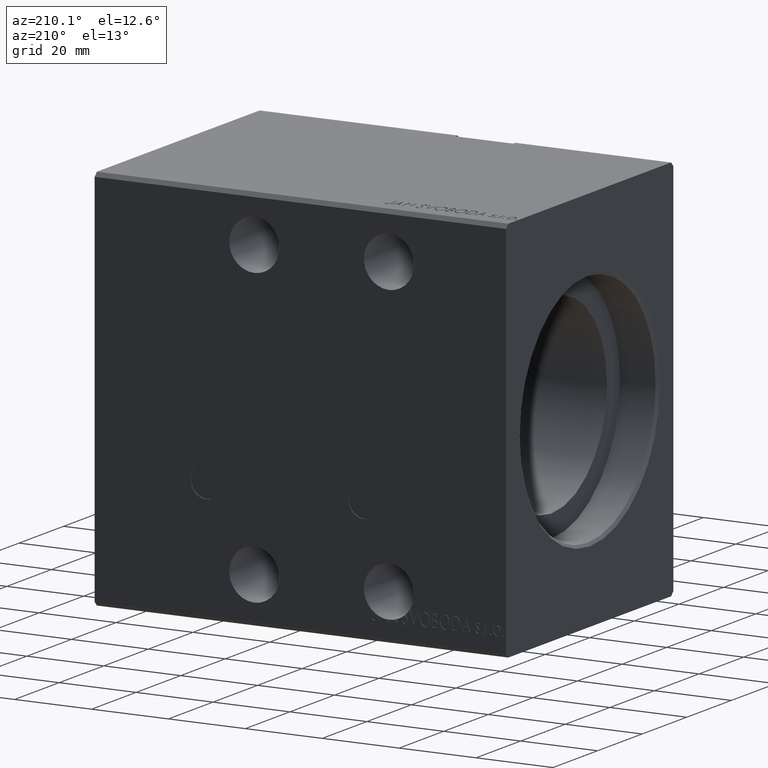
[diagram: clean part render]
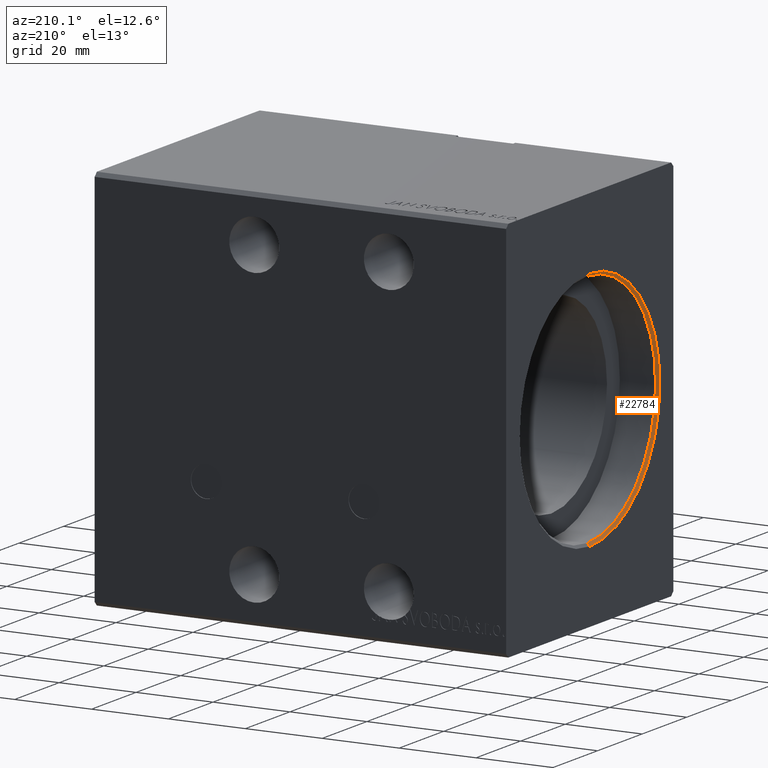
[diagram: same view with one face highlighted and labeled with its STEP entity id]
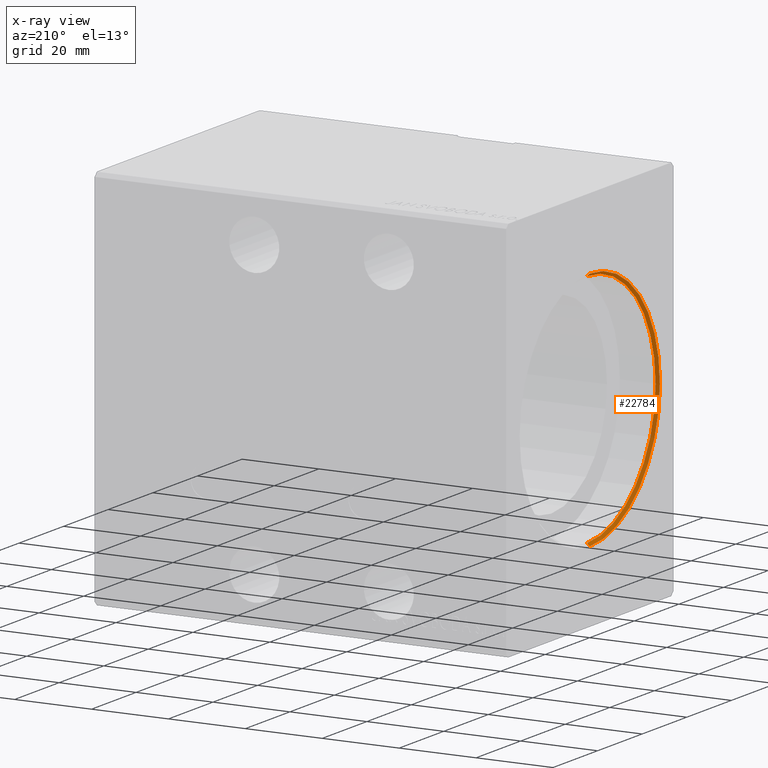
[diagram: x-ray of the same camera — body ghosted, the highlighted face saturated]
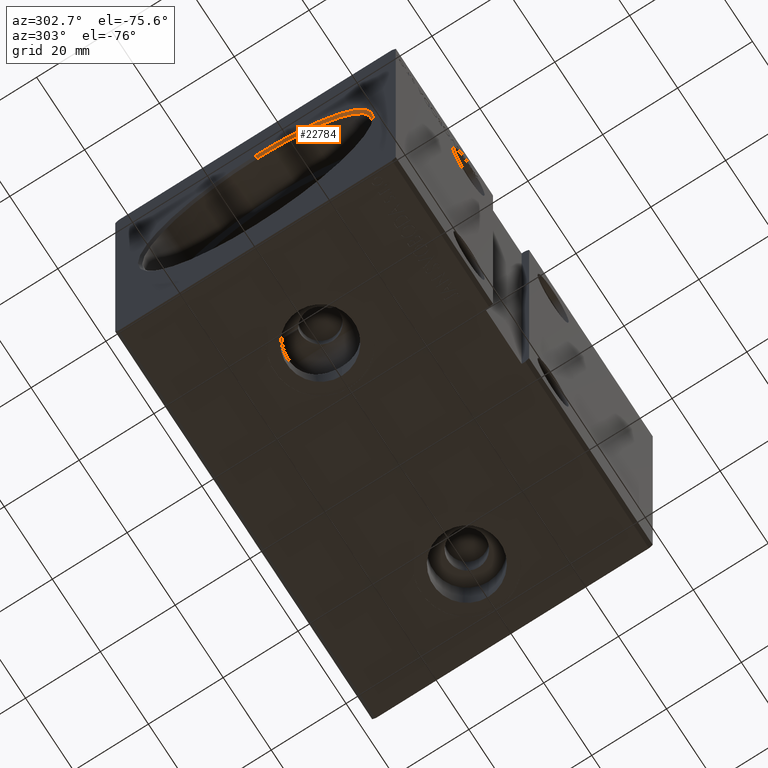
[diagram: same view with one face highlighted and labeled with its STEP entity id]
A machine part, auxiliary view. The second image highlights one B-rep face of the part: STEP entity #22784.
The next image is the same camera in x-ray: the body ghosted, the highlighted face saturated — about 0% of this face is hidden behind the body in this view.
A second angle (auxiliary view) of the same face is appended — the face is thin or edge-on in the first view.
In plain terms, the highlighted conical surface has half-angle 45 deg.
Its self-contained STEP definition (entity closure, byte-faithful):
#212 = CARTESIAN_POINT ( 'NONE',  ( 0.7000000000000234923, 3.765788907378110539E-15, -30.75000000000000355 ) ) ;
#1338 = VERTEX_POINT ( 'NONE', #9877 ) ;
#1432 = CARTESIAN_POINT ( 'NONE',  ( 0.000000000000000000, 0.000000000000000000, 31.45000000000002061 ) ) ;
#2287 = CARTESIAN_POINT ( 'NONE',  ( 0.7000000000000234923, 3.765788907378111328E-15, -30.75000000000000355 ) ) ;
#3324 = DIRECTION ( 'NONE',  ( -0.7071067811865509034, 8.659560562354890950E-17, -0.7071067811865441310 ) ) ;
#3500 = LINE ( 'NONE', #7021, #31882 ) ;
#6069 = EDGE_CURVE ( 'NONE', #23676, #1338, #34631, .T. ) ;
#6334 = DIRECTION ( 'NONE',  ( 1.000000000000000000, 0.000000000000000000, 0.000000000000000000 ) ) ;
#6873 = DIRECTION ( 'NONE',  ( 0.000000000000000000, 0.000000000000000000, -1.000000000000000000 ) ) ;
#7021 = CARTESIAN_POINT ( 'NONE',  ( 0.7000000000000234923, 0.000000000000000000, 30.75000000000000355 ) ) ;
#7534 = DIRECTION ( 'NONE',  ( -1.000000000000000000, 0.000000000000000000, 0.000000000000000000 ) ) ;
#8087 = VERTEX_POINT ( 'NONE', #1432 ) ;
#9776 = CARTESIAN_POINT ( 'NONE',  ( 0.7000000000000234923, 0.000000000000000000, 0.000000000000000000 ) ) ;
#9877 = CARTESIAN_POINT ( 'NONE',  ( 0.000000000000000000, 3.851514183318427194E-15, -31.45000000000002061 ) ) ;
#13752 = FACE_OUTER_BOUND ( 'NONE', #27677, .T. ) ;
#14749 = CIRCLE ( 'NONE', #28006, 31.45000000000002061 ) ;
#15054 = CARTESIAN_POINT ( 'NONE',  ( 0.000000000000000000, 0.000000000000000000, 0.000000000000000000 ) ) ;
#18104 = ORIENTED_EDGE ( 'NONE', *, *, #32592, .F. ) ;
#20161 = DIRECTION ( 'NONE',  ( 0.000000000000000000, 0.000000000000000000, 1.000000000000000000 ) ) ;
#21286 = AXIS2_PLACEMENT_3D ( 'NONE', #35927, #7534, #20161 ) ;
#22232 = VECTOR ( 'NONE', #3324, 999.9999999999998863 ) ;
#22364 = DIRECTION ( 'NONE',  ( -0.7071067811865509034, 0.000000000000000000, 0.7071067811865441310 ) ) ;
#22784 = ADVANCED_FACE ( 'NONE', ( #13752 ), #33869, .F. ) ;
#23676 = VERTEX_POINT ( 'NONE', #2287 ) ;
#23860 = VERTEX_POINT ( 'NONE', #34820 ) ;
#25227 = ORIENTED_EDGE ( 'NONE', *, *, #26897, .F. ) ;
#25936 = DIRECTION ( 'NONE',  ( -1.000000000000000000, 0.000000000000000000, 0.000000000000000000 ) ) ;
#25993 = ORIENTED_EDGE ( 'NONE', *, *, #6069, .T. ) ;
#26897 = EDGE_CURVE ( 'NONE', #23860, #8087, #3500, .T. ) ;
#27677 = EDGE_LOOP ( 'NONE', ( #18104, #25993, #31811, #25227 ) ) ;
#28006 = AXIS2_PLACEMENT_3D ( 'NONE', #15054, #6334, #37839 ) ;
#30668 = CIRCLE ( 'NONE', #40607, 30.75000000000000355 ) ;
#30680 = EDGE_CURVE ( 'NONE', #8087, #1338, #14749, .T. ) ;
#31811 = ORIENTED_EDGE ( 'NONE', *, *, #30680, .F. ) ;
#31882 = VECTOR ( 'NONE', #22364, 999.9999999999998863 ) ;
#32592 = EDGE_CURVE ( 'NONE', #23676, #23860, #30668, .T. ) ;
#33869 = CONICAL_SURFACE ( 'NONE', #21286, 30.75000000000000355, 0.7853981633974433940 ) ;
#34631 = LINE ( 'NONE', #212, #22232 ) ;
#34820 = CARTESIAN_POINT ( 'NONE',  ( 0.7000000000000234923, 0.000000000000000000, 30.75000000000000355 ) ) ;
#35927 = CARTESIAN_POINT ( 'NONE',  ( 0.7000000000000234923, 0.000000000000000000, 0.000000000000000000 ) ) ;
#37839 = DIRECTION ( 'NONE',  ( 0.000000000000000000, 0.000000000000000000, -1.000000000000000000 ) ) ;
#40607 = AXIS2_PLACEMENT_3D ( 'NONE', #9776, #25936, #6873 ) ;